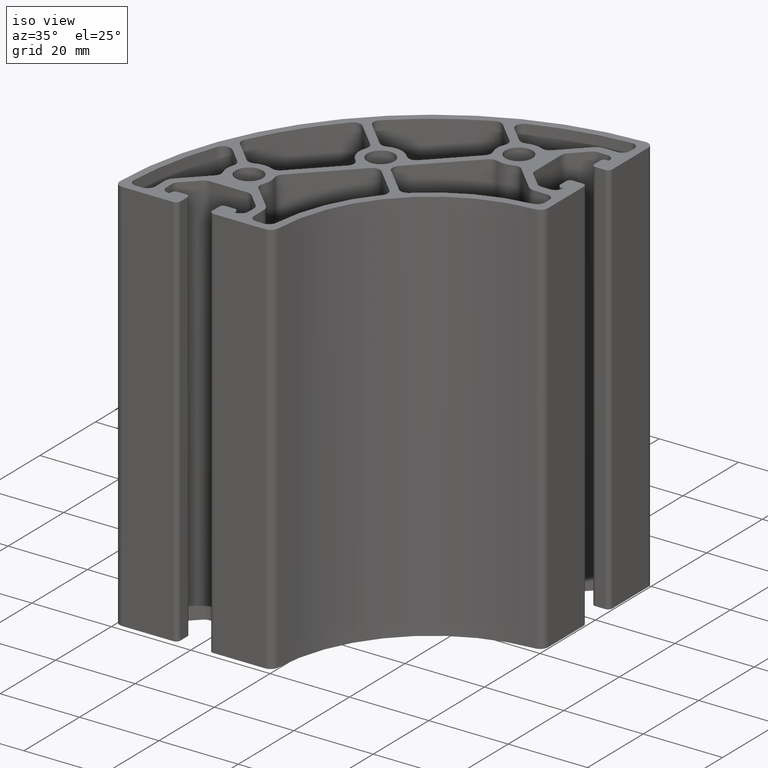
[diagram: clean part render]
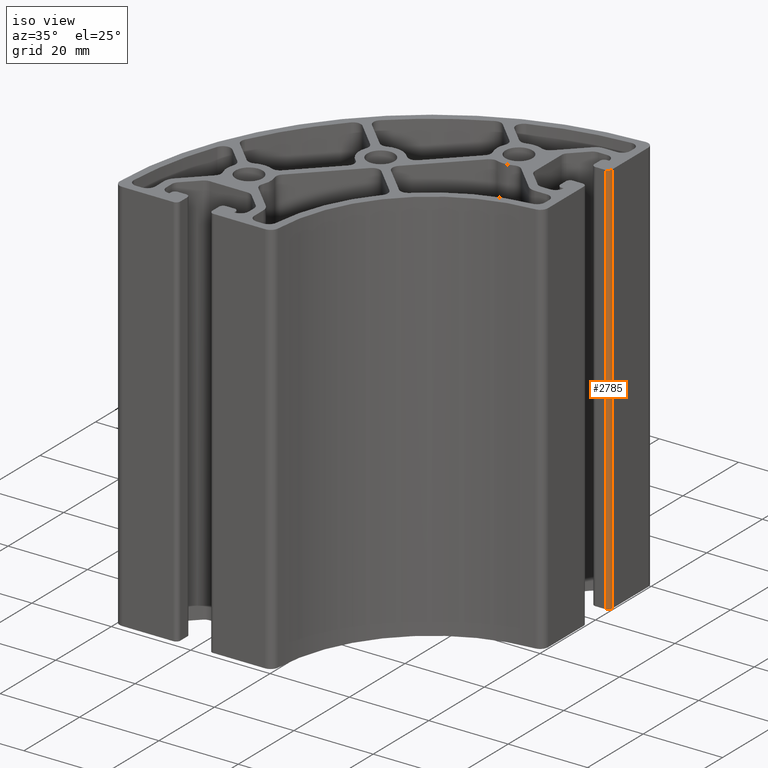
[diagram: same view with one face highlighted and labeled with its STEP entity id]
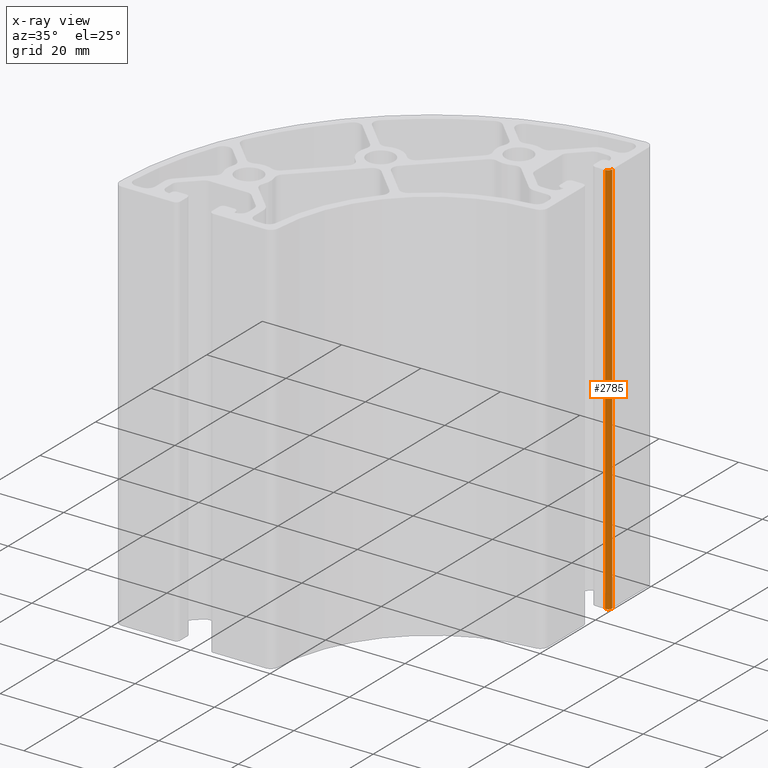
[diagram: x-ray of the same camera — body ghosted, the highlighted face saturated]
A machine part, iso view. The second image highlights one B-rep face of the part: STEP entity #2785.
The next image is the same camera in x-ray: the body ghosted, the highlighted face saturated — about 0% of this face is hidden behind the body in this view.
In plain terms, the highlighted cylindrical surface (edge-blend (fillet) strip) has radius 1.0426 mm, axis along (0, 0, 1).
Its self-contained STEP definition (entity closure, byte-faithful):
#154=CIRCLE('',#3051,1.04258249401677);
#155=CIRCLE('',#3052,1.04258249401677);
#268=CYLINDRICAL_SURFACE('',#3050,1.04258249401677);
#380=FACE_OUTER_BOUND('',#524,.T.);
#524=EDGE_LOOP('',(#2138,#2139,#2140,#2141));
#734=LINE('',#4558,#982);
#735=LINE('',#4564,#983);
#982=VECTOR('',#3708,100.);
#983=VECTOR('',#3715,100.);
#1266=VERTEX_POINT('',#4554);
#1267=VERTEX_POINT('',#4556);
#1268=VERTEX_POINT('',#4560);
#1269=VERTEX_POINT('',#4562);
#1632=EDGE_CURVE('',#1266,#1267,#734,.T.);
#1633=EDGE_CURVE('',#1266,#1268,#154,.T.);
#1634=EDGE_CURVE('',#1269,#1267,#155,.T.);
#1635=EDGE_CURVE('',#1268,#1269,#735,.T.);
#2138=ORIENTED_EDGE('',*,*,#1633,.F.);
#2139=ORIENTED_EDGE('',*,*,#1632,.T.);
#2140=ORIENTED_EDGE('',*,*,#1634,.F.);
#2141=ORIENTED_EDGE('',*,*,#1635,.F.);
#2785=ADVANCED_FACE('',(#380),#268,.T.);
#3050=AXIS2_PLACEMENT_3D('',#4559,#3709,#3710);
#3051=AXIS2_PLACEMENT_3D('',#4561,#3711,#3712);
#3052=AXIS2_PLACEMENT_3D('',#4563,#3713,#3714);
#3708=DIRECTION('',(0.,0.,1.));
#3709=DIRECTION('center_axis',(0.,0.,1.));
#3710=DIRECTION('ref_axis',(0.,1.,0.));
#3711=DIRECTION('center_axis',(0.,0.,-1.));
#3712=DIRECTION('ref_axis',(0.,1.,0.));
#3713=DIRECTION('center_axis',(0.,0.,1.));
#3714=DIRECTION('ref_axis',(0.,1.,0.));
#3715=DIRECTION('',(0.,0.,1.));
#4554=CARTESIAN_POINT('',(42.4264075570571,22.5373112818901,0.));
#4556=CARTESIAN_POINT('',(42.4264075570571,22.5373112818901,100.));
#4558=CARTESIAN_POINT('',(42.4264075570571,22.5373112818901,0.));
#4559=CARTESIAN_POINT('Origin',(41.3838250630404,22.5373112818901,0.));
#4560=CARTESIAN_POINT('',(41.3838250630404,21.4947287878734,0.));
#4561=CARTESIAN_POINT('Origin',(41.3838250630404,22.5373112818901,0.));
#4562=CARTESIAN_POINT('',(41.3838250630404,21.4947287878734,100.));
#4563=CARTESIAN_POINT('Origin',(41.3838250630404,22.5373112818901,100.));
#4564=CARTESIAN_POINT('',(41.3838250630404,21.4947287878734,0.));